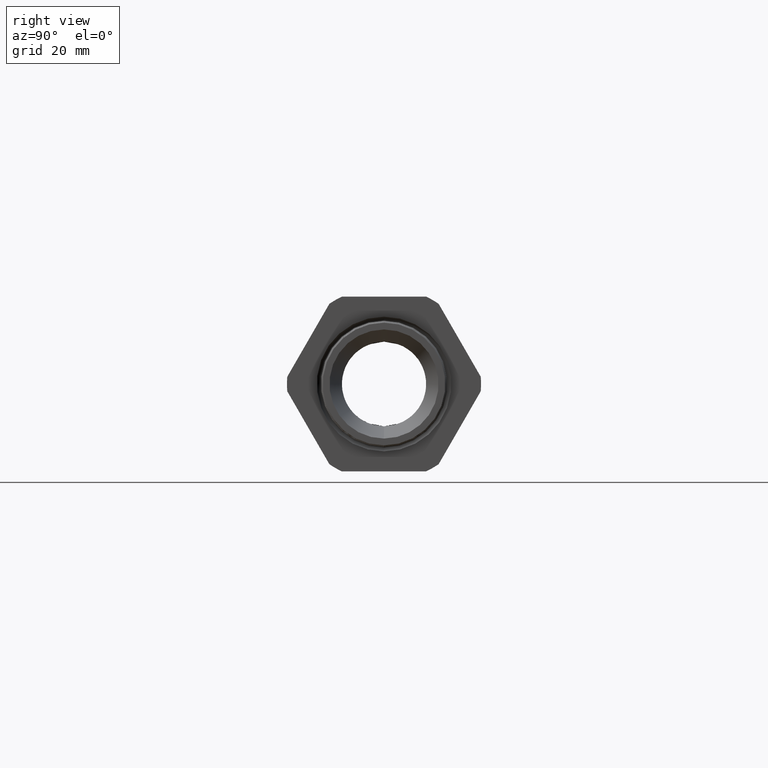
[diagram: clean part render]
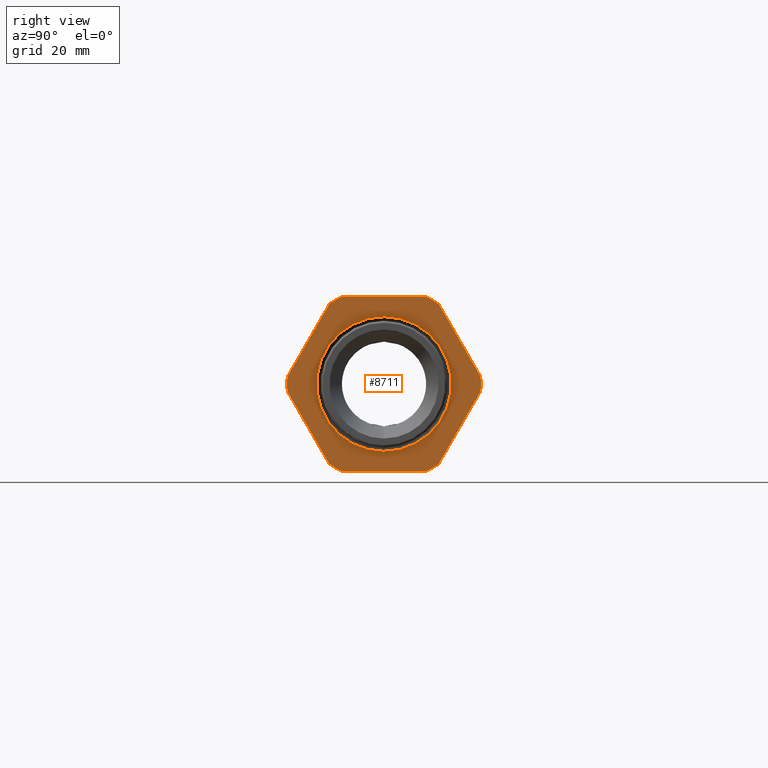
[diagram: same view with one face highlighted and labeled with its STEP entity id]
A machine part, right view. The second image highlights one B-rep face of the part: STEP entity #8711.
In plain terms, the highlighted planar face has unit normal (1, 0, 0).
Its self-contained STEP definition (entity closure, byte-faithful):
#8471 = EDGE_CURVE ( 'NONE', #8472, #8476, #11584, .T. ) ;
#8472 = VERTEX_POINT ( 'NONE', #11579 ) ;
#8476 = VERTEX_POINT ( 'NONE', #11573 ) ;
#8685 = VERTEX_POINT ( 'NONE', #11940 ) ;
#8686 = ORIENTED_EDGE ( 'NONE', *, *, #8687, .T. ) ;
#8687 = EDGE_CURVE ( 'NONE', #8685, #8688, #11939, .T. ) ;
#8688 = VERTEX_POINT ( 'NONE', #11935 ) ;
#8689 = ORIENTED_EDGE ( 'NONE', *, *, #8690, .T. ) ;
#8690 = EDGE_CURVE ( 'NONE', #8688, #8715, #11998, .T. ) ;
#8691 = EDGE_LOOP ( 'NONE', ( #8692, #8750 ) ) ;
#8692 = ORIENTED_EDGE ( 'NONE', *, *, #8471, .T. ) ;
#8694 = ORIENTED_EDGE ( 'NONE', *, *, #8695, .T. ) ;
#8695 = EDGE_CURVE ( 'NONE', #8722, #8696, #11993, .T. ) ;
#8696 = VERTEX_POINT ( 'NONE', #11988 ) ;
#8697 = ORIENTED_EDGE ( 'NONE', *, *, #8698, .T. ) ;
#8698 = EDGE_CURVE ( 'NONE', #8696, #8699, #11987, .T. ) ;
#8699 = VERTEX_POINT ( 'NONE', #11983 ) ;
#8700 = ORIENTED_EDGE ( 'NONE', *, *, #8701, .T. ) ;
#8701 = EDGE_CURVE ( 'NONE', #8699, #8702, #11982, .T. ) ;
#8702 = VERTEX_POINT ( 'NONE', #11977 ) ;
#8703 = ORIENTED_EDGE ( 'NONE', *, *, #8704, .T. ) ;
#8704 = EDGE_CURVE ( 'NONE', #8702, #8705, #11976, .T. ) ;
#8705 = VERTEX_POINT ( 'NONE', #11972 ) ;
#8706 = ORIENTED_EDGE ( 'NONE', *, *, #8707, .T. ) ;
#8707 = EDGE_CURVE ( 'NONE', #8705, #8708, #11969, .T. ) ;
#8708 = VERTEX_POINT ( 'NONE', #12030 ) ;
#8711 = ADVANCED_FACE ( 'NONE', ( #12029, #12028 ), #12027, .T. ) ;
#8712 = EDGE_LOOP ( 'NONE', ( #8713, #8717, #8720, #8694, #8697, #8700, #8703, #8706, #8763, #8766, #8686, #8689 ) ) ;
#8713 = ORIENTED_EDGE ( 'NONE', *, *, #8714, .T. ) ;
#8714 = EDGE_CURVE ( 'NONE', #8715, #8716, #12022, .T. ) ;
#8715 = VERTEX_POINT ( 'NONE', #12018 ) ;
#8716 = VERTEX_POINT ( 'NONE', #12017 ) ;
#8717 = ORIENTED_EDGE ( 'NONE', *, *, #8718, .T. ) ;
#8718 = EDGE_CURVE ( 'NONE', #8716, #8719, #12016, .T. ) ;
#8719 = VERTEX_POINT ( 'NONE', #12011 ) ;
#8720 = ORIENTED_EDGE ( 'NONE', *, *, #8721, .T. ) ;
#8721 = EDGE_CURVE ( 'NONE', #8719, #8722, #12010, .T. ) ;
#8722 = VERTEX_POINT ( 'NONE', #12006 ) ;
#8750 = ORIENTED_EDGE ( 'NONE', *, *, #8751, .T. ) ;
#8751 = EDGE_CURVE ( 'NONE', #8476, #8472, #12078, .T. ) ;
#8763 = ORIENTED_EDGE ( 'NONE', *, *, #8764, .T. ) ;
#8764 = EDGE_CURVE ( 'NONE', #8708, #8765, #12119, .T. ) ;
#8765 = VERTEX_POINT ( 'NONE', #12111 ) ;
#8766 = ORIENTED_EDGE ( 'NONE', *, *, #8767, .T. ) ;
#8767 = EDGE_CURVE ( 'NONE', #8765, #8685, #12110, .T. ) ;
#11573 = CARTESIAN_POINT ( 'NONE',  ( -0.3100000000000000000, 6.129267554568760900E-017, 0.5004926774671845100 ) ) ;
#11579 = CARTESIAN_POINT ( 'NONE',  ( -0.3100000000000000000, 0.0000000000000000000, -0.5004926774671845100 ) ) ;
#11580 = DIRECTION ( 'NONE',  ( 0.0000000000000000000, 0.0000000000000000000, -1.000000000000000000 ) ) ;
#11581 = DIRECTION ( 'NONE',  ( -1.000000000000000000, 0.0000000000000000000, 0.0000000000000000000 ) ) ;
#11582 = CARTESIAN_POINT ( 'NONE',  ( -0.3100000000000000000, 0.0000000000000000000, 0.0000000000000000000 ) ) ;
#11583 = AXIS2_PLACEMENT_3D ( 'NONE', #11582, #11581, #11580 ) ;
#11584 = CIRCLE ( 'NONE', #11583, 0.5004926774671845100 ) ;
#11935 = CARTESIAN_POINT ( 'NONE',  ( -0.3100000000000000000, 0.3131489262315936800, -0.6500000000000000200 ) ) ;
#11936 = DIRECTION ( 'NONE',  ( 0.0000000000000000000, 1.000000000000000000, 0.0000000000000000000 ) ) ;
#11937 = VECTOR ( 'NONE', #11936, 39.37007874015748100 ) ;
#11938 = CARTESIAN_POINT ( 'NONE',  ( -0.3100000000000000000, 1.300000000000000000, -0.6500000000000000200 ) ) ;
#11939 = LINE ( 'NONE', #11938, #11937 ) ;
#11940 = CARTESIAN_POINT ( 'NONE',  ( -0.3100000000000000000, -0.3131489262315936800, -0.6500000000000000200 ) ) ;
#11965 = DIRECTION ( 'NONE',  ( 0.0000000000000000000, 0.0000000000000000000, -1.000000000000000000 ) ) ;
#11966 = DIRECTION ( 'NONE',  ( 1.000000000000000000, 0.0000000000000000000, 0.0000000000000000000 ) ) ;
#11967 = CARTESIAN_POINT ( 'NONE',  ( -0.3100000000000000000, 0.0000000000000000000, 0.0000000000000000000 ) ) ;
#11968 = AXIS2_PLACEMENT_3D ( 'NONE', #11967, #11966, #11965 ) ;
#11969 = CIRCLE ( 'NONE', #11968, 0.7215000000000002500 ) ;
#11972 = CARTESIAN_POINT ( 'NONE',  ( -0.3100000000000000000, -0.7194909755756820900, 0.05380507471562026600 ) ) ;
#11973 = DIRECTION ( 'NONE',  ( 0.0000000000000000000, -0.4999999999999997200, -0.8660254037844388200 ) ) ;
#11974 = VECTOR ( 'NONE', #11973, 39.37007874015748900 ) ;
#11975 = CARTESIAN_POINT ( 'NONE',  ( -0.3100000000000000000, -0.2379165124598855400, 0.8879165124598847900 ) ) ;
#11976 = LINE ( 'NONE', #11975, #11974 ) ;
#11977 = CARTESIAN_POINT ( 'NONE',  ( -0.3100000000000000000, -0.4063420493440885700, 0.5961949252843791200 ) ) ;
#11978 = DIRECTION ( 'NONE',  ( 0.0000000000000000000, 0.0000000000000000000, -1.000000000000000000 ) ) ;
#11979 = DIRECTION ( 'NONE',  ( 1.000000000000000000, 0.0000000000000000000, 0.0000000000000000000 ) ) ;
#11980 = CARTESIAN_POINT ( 'NONE',  ( -0.3100000000000000000, 0.0000000000000000000, 0.0000000000000000000 ) ) ;
#11981 = AXIS2_PLACEMENT_3D ( 'NONE', #11980, #11979, #11978 ) ;
#11982 = CIRCLE ( 'NONE', #11981, 0.7215000000000000300 ) ;
#11983 = CARTESIAN_POINT ( 'NONE',  ( -0.3100000000000000000, -0.3131489262315937400, 0.6500000000000000200 ) ) ;
#11984 = DIRECTION ( 'NONE',  ( 0.0000000000000000000, -1.000000000000000000, 0.0000000000000000000 ) ) ;
#11985 = VECTOR ( 'NONE', #11984, 39.37007874015748100 ) ;
#11986 = CARTESIAN_POINT ( 'NONE',  ( -0.3100000000000000000, 1.300000000000000000, 0.6500000000000000200 ) ) ;
#11987 = LINE ( 'NONE', #11986, #11985 ) ;
#11988 = CARTESIAN_POINT ( 'NONE',  ( -0.3100000000000000000, 0.3131489262315935700, 0.6500000000000000200 ) ) ;
#11989 = DIRECTION ( 'NONE',  ( 0.0000000000000000000, 0.0000000000000000000, -1.000000000000000000 ) ) ;
#11990 = DIRECTION ( 'NONE',  ( 1.000000000000000000, 0.0000000000000000000, 0.0000000000000000000 ) ) ;
#11991 = CARTESIAN_POINT ( 'NONE',  ( -0.3100000000000000000, 0.0000000000000000000, 0.0000000000000000000 ) ) ;
#11992 = AXIS2_PLACEMENT_3D ( 'NONE', #11991, #11990, #11989 ) ;
#11993 = CIRCLE ( 'NONE', #11992, 0.7215000000000000300 ) ;
#11994 = DIRECTION ( 'NONE',  ( 0.0000000000000000000, 0.0000000000000000000, -1.000000000000000000 ) ) ;
#11995 = DIRECTION ( 'NONE',  ( 1.000000000000000000, 0.0000000000000000000, 0.0000000000000000000 ) ) ;
#11996 = CARTESIAN_POINT ( 'NONE',  ( -0.3100000000000000000, 0.0000000000000000000, 0.0000000000000000000 ) ) ;
#11997 = AXIS2_PLACEMENT_3D ( 'NONE', #11996, #11995, #11994 ) ;
#11998 = CIRCLE ( 'NONE', #11997, 0.7215000000000000300 ) ;
#12006 = CARTESIAN_POINT ( 'NONE',  ( -0.3100000000000000000, 0.4063420493440886300, 0.5961949252843790100 ) ) ;
#12007 = DIRECTION ( 'NONE',  ( 0.0000000000000000000, -0.4999999999999997200, 0.8660254037844388200 ) ) ;
#12008 = VECTOR ( 'NONE', #12007, 39.37007874015748900 ) ;
#12009 = CARTESIAN_POINT ( 'NONE',  ( -0.3100000000000000000, 0.8879165124598849000, -0.2379165124598851000 ) ) ;
#12010 = LINE ( 'NONE', #12009, #12008 ) ;
#12011 = CARTESIAN_POINT ( 'NONE',  ( -0.3100000000000000000, 0.7194909755756819800, 0.05380507471562052300 ) ) ;
#12012 = DIRECTION ( 'NONE',  ( 0.0000000000000000000, 0.0000000000000000000, -1.000000000000000000 ) ) ;
#12013 = DIRECTION ( 'NONE',  ( 1.000000000000000000, 0.0000000000000000000, 0.0000000000000000000 ) ) ;
#12014 = CARTESIAN_POINT ( 'NONE',  ( -0.3100000000000000000, 0.0000000000000000000, 0.0000000000000000000 ) ) ;
#12015 = AXIS2_PLACEMENT_3D ( 'NONE', #12014, #12013, #12012 ) ;
#12016 = CIRCLE ( 'NONE', #12015, 0.7214999999999999200 ) ;
#12017 = CARTESIAN_POINT ( 'NONE',  ( -0.3100000000000000000, 0.7194909755756817600, -0.05380507471562091100 ) ) ;
#12018 = CARTESIAN_POINT ( 'NONE',  ( -0.3100000000000000000, 0.4063420493440886800, -0.5961949252843790100 ) ) ;
#12019 = DIRECTION ( 'NONE',  ( 0.0000000000000000000, 0.4999999999999997200, 0.8660254037844388200 ) ) ;
#12020 = VECTOR ( 'NONE', #12019, 39.37007874015748900 ) ;
#12021 = CARTESIAN_POINT ( 'NONE',  ( -0.3100000000000000000, 0.8879165124598849000, 0.2379165124598851000 ) ) ;
#12022 = LINE ( 'NONE', #12021, #12020 ) ;
#12023 = DIRECTION ( 'NONE',  ( 0.0000000000000000000, 0.0000000000000000000, -1.000000000000000000 ) ) ;
#12024 = DIRECTION ( 'NONE',  ( 1.000000000000000000, 0.0000000000000000000, 0.0000000000000000000 ) ) ;
#12025 = CARTESIAN_POINT ( 'NONE',  ( -0.3100000000000000000, 1.300000000000000000, 0.0000000000000000000 ) ) ;
#12026 = AXIS2_PLACEMENT_3D ( 'NONE', #12025, #12024, #12023 ) ;
#12027 = PLANE ( 'NONE',  #12026 ) ;
#12028 = FACE_BOUND ( 'NONE', #8691, .T. ) ;
#12029 = FACE_OUTER_BOUND ( 'NONE', #8712, .T. ) ;
#12030 = CARTESIAN_POINT ( 'NONE',  ( -0.3100000000000000000, -0.7194909755756819800, -0.05380507471562113300 ) ) ;
#12074 = DIRECTION ( 'NONE',  ( 0.0000000000000000000, 0.0000000000000000000, -1.000000000000000000 ) ) ;
#12075 = DIRECTION ( 'NONE',  ( -1.000000000000000000, 0.0000000000000000000, 0.0000000000000000000 ) ) ;
#12076 = CARTESIAN_POINT ( 'NONE',  ( -0.3100000000000000000, 0.0000000000000000000, 0.0000000000000000000 ) ) ;
#12077 = AXIS2_PLACEMENT_3D ( 'NONE', #12076, #12075, #12074 ) ;
#12078 = CIRCLE ( 'NONE', #12077, 0.5004926774671845100 ) ;
#12106 = DIRECTION ( 'NONE',  ( 0.0000000000000000000, 0.0000000000000000000, -1.000000000000000000 ) ) ;
#12107 = DIRECTION ( 'NONE',  ( 1.000000000000000000, 0.0000000000000000000, 0.0000000000000000000 ) ) ;
#12108 = CARTESIAN_POINT ( 'NONE',  ( -0.3100000000000000000, 0.0000000000000000000, 0.0000000000000000000 ) ) ;
#12109 = AXIS2_PLACEMENT_3D ( 'NONE', #12108, #12107, #12106 ) ;
#12110 = CIRCLE ( 'NONE', #12109, 0.7215000000000000300 ) ;
#12111 = CARTESIAN_POINT ( 'NONE',  ( -0.3100000000000000000, -0.4063420493440883500, -0.5961949252843792300 ) ) ;
#12112 = DIRECTION ( 'NONE',  ( 0.0000000000000000000, 0.5000000000000002200, -0.8660254037844384900 ) ) ;
#12113 = VECTOR ( 'NONE', #12112, 39.37007874015748900 ) ;
#12114 = CARTESIAN_POINT ( 'NONE',  ( -0.3100000000000000000, -0.2379165124598849900, -0.8879165124598856800 ) ) ;
#12119 = LINE ( 'NONE', #12114, #12113 ) ;